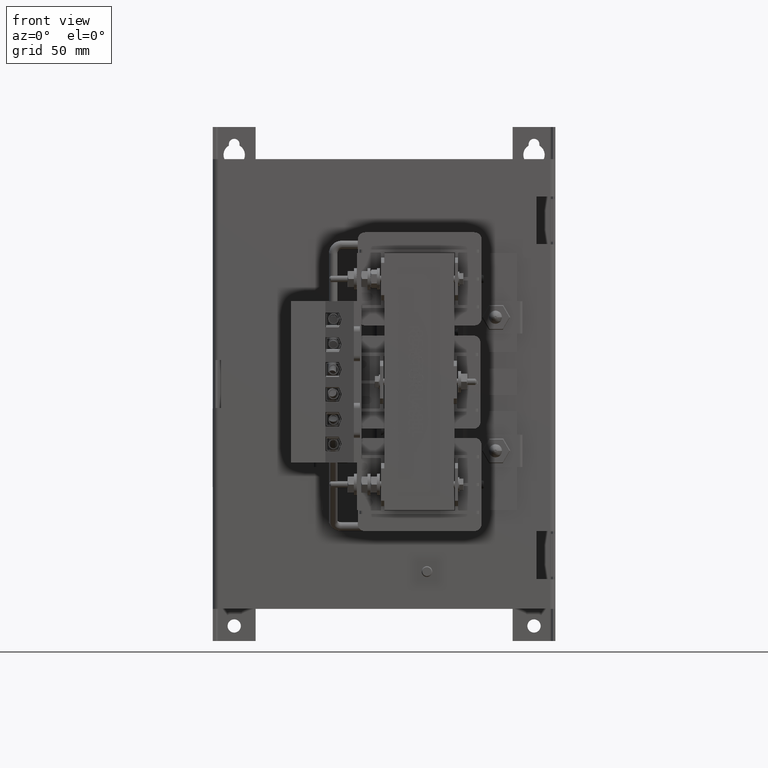
[diagram: clean part render]
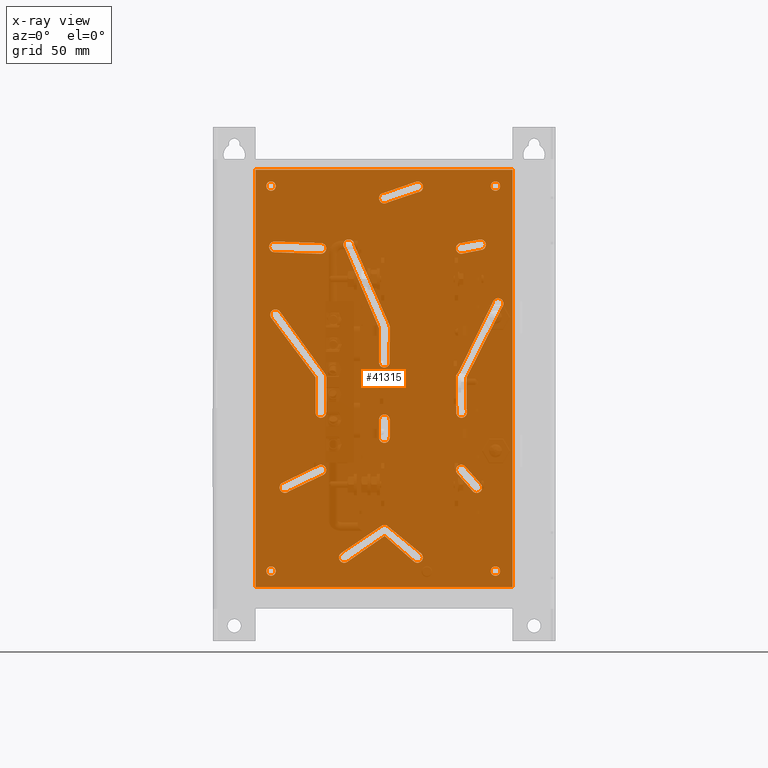
[diagram: x-ray — body ghosted, one internal face saturated and labeled with its STEP entity id]
A machine part, front view, then the same camera in x-ray: the body is ghosted and one INTERNAL B-rep face — a face not visible from any outside direction — is saturated and labeled: STEP entity #41315.
In plain terms, the highlighted planar face has unit normal (0, -1, -0).
Its self-contained STEP definition (entity closure, byte-faithful):
#1560=FACE_BOUND('',#6615,.T.);
#1561=FACE_BOUND('',#6616,.T.);
#1562=FACE_BOUND('',#6617,.T.);
#1563=FACE_BOUND('',#6618,.T.);
#1564=FACE_BOUND('',#6619,.T.);
#1565=FACE_BOUND('',#6620,.T.);
#1566=FACE_BOUND('',#6621,.T.);
#1567=FACE_BOUND('',#6622,.T.);
#1568=FACE_BOUND('',#6623,.T.);
#1569=FACE_BOUND('',#6624,.T.);
#1570=FACE_BOUND('',#6625,.T.);
#1571=FACE_BOUND('',#6626,.T.);
#1572=FACE_BOUND('',#6627,.T.);
#1573=FACE_BOUND('',#6628,.T.);
#2050=PLANE('',#44567);
#4233=FACE_OUTER_BOUND('',#6614,.T.);
#6614=EDGE_LOOP('',(#29718,#29719,#29720,#29721));
#6615=EDGE_LOOP('',(#29722,#29723,#29724,#29725));
#6616=EDGE_LOOP('',(#29726,#29727,#29728,#29729));
#6617=EDGE_LOOP('',(#29730,#29731,#29732,#29733,#29734,#29735,#29736,#29737));
#6618=EDGE_LOOP('',(#29738,#29739,#29740,#29741,#29742,#29743,#29744));
#6619=EDGE_LOOP('',(#29745,#29746,#29747,#29748,#29749,#29750,#29751));
#6620=EDGE_LOOP('',(#29752,#29753,#29754,#29755));
#6621=EDGE_LOOP('',(#29756,#29757,#29758,#29759,#29760,#29761,#29762));
#6622=EDGE_LOOP('',(#29763,#29764,#29765,#29766));
#6623=EDGE_LOOP('',(#29767,#29768,#29769,#29770));
#6624=EDGE_LOOP('',(#29771,#29772,#29773,#29774));
#6625=EDGE_LOOP('',(#29775));
#6626=EDGE_LOOP('',(#29776));
#6627=EDGE_LOOP('',(#29777));
#6628=EDGE_LOOP('',(#29778));
#9417=LINE('',#60218,#13462);
#9422=LINE('',#60232,#13467);
#9426=LINE('',#60241,#13471);
#9432=LINE('',#60253,#13477);
#9433=LINE('',#60266,#13478);
#9437=LINE('',#60275,#13482);
#9442=LINE('',#60289,#13487);
#9446=LINE('',#60301,#13491);
#9449=LINE('',#60308,#13494);
#9454=LINE('',#60322,#13499);
#9460=LINE('',#60334,#13505);
#9461=LINE('',#60338,#13506);
#9471=LINE('',#60387,#13516);
#9473=LINE('',#60405,#13518);
#9474=LINE('',#60407,#13519);
#9475=LINE('',#60409,#13520);
#9476=LINE('',#60410,#13521);
#9477=LINE('',#60413,#13522);
#9478=LINE('',#60416,#13523);
#9479=LINE('',#60420,#13524);
#9480=LINE('',#60424,#13525);
#9481=LINE('',#60426,#13526);
#9482=LINE('',#60430,#13527);
#9483=LINE('',#60434,#13528);
#9484=LINE('',#60438,#13529);
#9485=LINE('',#60442,#13530);
#9486=LINE('',#60447,#13531);
#9487=LINE('',#60450,#13532);
#9488=LINE('',#60455,#13533);
#9489=LINE('',#60458,#13534);
#9490=LINE('',#60461,#13535);
#9491=LINE('',#60465,#13536);
#13462=VECTOR('',#48965,0.393700787401575);
#13467=VECTOR('',#48978,0.393700787401575);
#13471=VECTOR('',#48984,0.393700787401575);
#13477=VECTOR('',#48992,0.393700787401575);
#13478=VECTOR('',#49009,0.393700787401575);
#13482=VECTOR('',#49015,0.393700787401575);
#13487=VECTOR('',#49028,0.393700787401575);
#13491=VECTOR('',#49040,0.393700787401575);
#13494=VECTOR('',#49045,0.393700787401575);
#13499=VECTOR('',#49058,0.393700787401575);
#13505=VECTOR('',#49066,0.393700787401575);
#13506=VECTOR('',#49069,0.393700787401575);
#13516=VECTOR('',#49125,0.393700787401575);
#13518=VECTOR('',#49143,0.393700787401575);
#13519=VECTOR('',#49144,0.393700787401575);
#13520=VECTOR('',#49145,0.393700787401575);
#13521=VECTOR('',#49146,0.393700787401575);
#13522=VECTOR('',#49149,0.393700787401575);
#13523=VECTOR('',#49152,0.393700787401575);
#13524=VECTOR('',#49155,0.393700787401575);
#13525=VECTOR('',#49158,0.393700787401575);
#13526=VECTOR('',#49159,0.393700787401575);
#13527=VECTOR('',#49162,0.393700787401575);
#13528=VECTOR('',#49165,0.393700787401575);
#13529=VECTOR('',#49168,0.393700787401575);
#13530=VECTOR('',#49171,0.393700787401575);
#13531=VECTOR('',#49176,0.393700787401575);
#13532=VECTOR('',#49179,0.393700787401575);
#13533=VECTOR('',#49182,0.393700787401575);
#13534=VECTOR('',#49185,0.393700787401575);
#13535=VECTOR('',#49186,0.393700787401575);
#13536=VECTOR('',#49189,0.393700787401575);
#17244=CIRCLE('',#44508,0.125);
#17247=CIRCLE('',#44516,0.125);
#17250=CIRCLE('',#44523,0.125000000000001);
#17252=CIRCLE('',#44527,0.125);
#17254=CIRCLE('',#44532,0.125);
#17256=CIRCLE('',#44538,0.125);
#17259=CIRCLE('',#44542,0.125);
#17263=CIRCLE('',#44548,0.125);
#17266=CIRCLE('',#44552,0.125);
#17278=CIRCLE('',#44568,0.125000000000001);
#17279=CIRCLE('',#44569,0.125);
#17280=CIRCLE('',#44570,0.125);
#17281=CIRCLE('',#44571,0.125);
#17282=CIRCLE('',#44572,0.125);
#17283=CIRCLE('',#44573,0.110977153248394);
#17284=CIRCLE('',#44574,0.125);
#17285=CIRCLE('',#44575,0.125);
#17286=CIRCLE('',#44576,0.125);
#17287=CIRCLE('',#44577,0.125);
#17288=CIRCLE('',#44578,0.125);
#17289=CIRCLE('',#44579,0.125);
#17290=CIRCLE('',#44580,0.125);
#17291=CIRCLE('',#44581,0.125);
#17292=CIRCLE('',#44582,0.125);
#17293=CIRCLE('',#44583,0.125);
#17294=CIRCLE('',#44584,0.11);
#17295=CIRCLE('',#44585,0.11);
#17296=CIRCLE('',#44586,0.11);
#17297=CIRCLE('',#44587,0.11);
#18733=VERTEX_POINT('',#60216);
#18734=VERTEX_POINT('',#60217);
#18737=VERTEX_POINT('',#60225);
#18739=VERTEX_POINT('',#60231);
#18741=VERTEX_POINT('',#60237);
#18743=VERTEX_POINT('',#60240);
#18746=VERTEX_POINT('',#60247);
#18748=VERTEX_POINT('',#60251);
#18751=VERTEX_POINT('',#60264);
#18752=VERTEX_POINT('',#60265);
#18755=VERTEX_POINT('',#60273);
#18756=VERTEX_POINT('',#60274);
#18759=VERTEX_POINT('',#60285);
#18761=VERTEX_POINT('',#60288);
#18763=VERTEX_POINT('',#60294);
#18765=VERTEX_POINT('',#60300);
#18767=VERTEX_POINT('',#60306);
#18768=VERTEX_POINT('',#60307);
#18771=VERTEX_POINT('',#60315);
#18773=VERTEX_POINT('',#60321);
#18776=VERTEX_POINT('',#60328);
#18778=VERTEX_POINT('',#60332);
#18779=VERTEX_POINT('',#60336);
#18780=VERTEX_POINT('',#60337);
#18785=VERTEX_POINT('',#60357);
#18788=VERTEX_POINT('',#60365);
#18796=VERTEX_POINT('',#60385);
#18803=VERTEX_POINT('',#60403);
#18804=VERTEX_POINT('',#60404);
#18805=VERTEX_POINT('',#60406);
#18806=VERTEX_POINT('',#60408);
#18807=VERTEX_POINT('',#60412);
#18808=VERTEX_POINT('',#60414);
#18809=VERTEX_POINT('',#60417);
#18810=VERTEX_POINT('',#60419);
#18811=VERTEX_POINT('',#60422);
#18812=VERTEX_POINT('',#60423);
#18813=VERTEX_POINT('',#60425);
#18814=VERTEX_POINT('',#60427);
#18815=VERTEX_POINT('',#60429);
#18816=VERTEX_POINT('',#60431);
#18817=VERTEX_POINT('',#60433);
#18818=VERTEX_POINT('',#60436);
#18819=VERTEX_POINT('',#60437);
#18820=VERTEX_POINT('',#60439);
#18821=VERTEX_POINT('',#60441);
#18822=VERTEX_POINT('',#60444);
#18823=VERTEX_POINT('',#60446);
#18824=VERTEX_POINT('',#60448);
#18825=VERTEX_POINT('',#60451);
#18826=VERTEX_POINT('',#60452);
#18827=VERTEX_POINT('',#60454);
#18828=VERTEX_POINT('',#60456);
#18829=VERTEX_POINT('',#60459);
#18830=VERTEX_POINT('',#60460);
#18831=VERTEX_POINT('',#60462);
#18832=VERTEX_POINT('',#60464);
#18833=VERTEX_POINT('',#60468);
#18834=VERTEX_POINT('',#60470);
#18835=VERTEX_POINT('',#60472);
#18836=VERTEX_POINT('',#60474);
#22933=EDGE_CURVE('',#18733,#18734,#9417,.T.);
#22937=EDGE_CURVE('',#18737,#18733,#17244,.T.);
#22940=EDGE_CURVE('',#18739,#18737,#9422,.T.);
#22944=EDGE_CURVE('',#18743,#18741,#9426,.T.);
#22950=EDGE_CURVE('',#18746,#18748,#9432,.T.);
#22952=EDGE_CURVE('',#18748,#18743,#17247,.T.);
#22955=EDGE_CURVE('',#18751,#18752,#9433,.T.);
#22959=EDGE_CURVE('',#18755,#18756,#9437,.T.);
#22963=EDGE_CURVE('',#18752,#18755,#17250,.T.);
#22966=EDGE_CURVE('',#18761,#18759,#9442,.T.);
#22969=EDGE_CURVE('',#18763,#18761,#17252,.T.);
#22972=EDGE_CURVE('',#18765,#18763,#9446,.T.);
#22975=EDGE_CURVE('',#18767,#18768,#9449,.T.);
#22979=EDGE_CURVE('',#18771,#18767,#17254,.T.);
#22982=EDGE_CURVE('',#18773,#18771,#9454,.T.);
#22988=EDGE_CURVE('',#18776,#18778,#9460,.T.);
#22989=EDGE_CURVE('',#18779,#18780,#9461,.T.);
#22993=EDGE_CURVE('',#18778,#18779,#17256,.T.);
#22996=EDGE_CURVE('',#18734,#18739,#17259,.T.);
#23000=EDGE_CURVE('',#18785,#18765,#17263,.T.);
#23005=EDGE_CURVE('',#18759,#18788,#17266,.T.);
#23015=EDGE_CURVE('',#18768,#18796,#9471,.T.);
#23023=EDGE_CURVE('',#18803,#18804,#9473,.T.);
#23024=EDGE_CURVE('',#18805,#18803,#9474,.T.);
#23025=EDGE_CURVE('',#18806,#18805,#9475,.T.);
#23026=EDGE_CURVE('',#18804,#18806,#9476,.T.);
#23027=EDGE_CURVE('',#18741,#18746,#17278,.T.);
#23028=EDGE_CURVE('',#18788,#18807,#9477,.T.);
#23029=EDGE_CURVE('',#18807,#18808,#17279,.T.);
#23030=EDGE_CURVE('',#18808,#18785,#9478,.T.);
#23031=EDGE_CURVE('',#18796,#18809,#17280,.T.);
#23032=EDGE_CURVE('',#18809,#18810,#9479,.T.);
#23033=EDGE_CURVE('',#18810,#18773,#17281,.T.);
#23034=EDGE_CURVE('',#18811,#18812,#9480,.T.);
#23035=EDGE_CURVE('',#18812,#18813,#9481,.T.);
#23036=EDGE_CURVE('',#18813,#18814,#17282,.T.);
#23037=EDGE_CURVE('',#18814,#18815,#9482,.T.);
#23038=EDGE_CURVE('',#18815,#18816,#17283,.T.);
#23039=EDGE_CURVE('',#18816,#18817,#9483,.T.);
#23040=EDGE_CURVE('',#18817,#18811,#17284,.T.);
#23041=EDGE_CURVE('',#18818,#18819,#9484,.T.);
#23042=EDGE_CURVE('',#18819,#18820,#17285,.T.);
#23043=EDGE_CURVE('',#18820,#18821,#9485,.T.);
#23044=EDGE_CURVE('',#18821,#18818,#17286,.T.);
#23045=EDGE_CURVE('',#18780,#18822,#17287,.T.);
#23046=EDGE_CURVE('',#18822,#18823,#9486,.T.);
#23047=EDGE_CURVE('',#18823,#18824,#17288,.T.);
#23048=EDGE_CURVE('',#18824,#18776,#9487,.T.);
#23049=EDGE_CURVE('',#18825,#18826,#17289,.T.);
#23050=EDGE_CURVE('',#18826,#18827,#9488,.T.);
#23051=EDGE_CURVE('',#18827,#18828,#17290,.T.);
#23052=EDGE_CURVE('',#18828,#18825,#9489,.T.);
#23053=EDGE_CURVE('',#18829,#18830,#9490,.T.);
#23054=EDGE_CURVE('',#18830,#18831,#17291,.T.);
#23055=EDGE_CURVE('',#18831,#18832,#9491,.T.);
#23056=EDGE_CURVE('',#18832,#18829,#17292,.T.);
#23057=EDGE_CURVE('',#18756,#18751,#17293,.T.);
#23058=EDGE_CURVE('',#18833,#18833,#17294,.T.);
#23059=EDGE_CURVE('',#18834,#18834,#17295,.T.);
#23060=EDGE_CURVE('',#18835,#18835,#17296,.T.);
#23061=EDGE_CURVE('',#18836,#18836,#17297,.T.);
#29718=ORIENTED_EDGE('',*,*,#23023,.F.);
#29719=ORIENTED_EDGE('',*,*,#23024,.F.);
#29720=ORIENTED_EDGE('',*,*,#23025,.F.);
#29721=ORIENTED_EDGE('',*,*,#23026,.F.);
#29722=ORIENTED_EDGE('',*,*,#22933,.T.);
#29723=ORIENTED_EDGE('',*,*,#22996,.T.);
#29724=ORIENTED_EDGE('',*,*,#22940,.T.);
#29725=ORIENTED_EDGE('',*,*,#22937,.T.);
#29726=ORIENTED_EDGE('',*,*,#22944,.T.);
#29727=ORIENTED_EDGE('',*,*,#23027,.T.);
#29728=ORIENTED_EDGE('',*,*,#22950,.T.);
#29729=ORIENTED_EDGE('',*,*,#22952,.T.);
#29730=ORIENTED_EDGE('',*,*,#22966,.T.);
#29731=ORIENTED_EDGE('',*,*,#23005,.T.);
#29732=ORIENTED_EDGE('',*,*,#23028,.T.);
#29733=ORIENTED_EDGE('',*,*,#23029,.T.);
#29734=ORIENTED_EDGE('',*,*,#23030,.T.);
#29735=ORIENTED_EDGE('',*,*,#23000,.T.);
#29736=ORIENTED_EDGE('',*,*,#22972,.T.);
#29737=ORIENTED_EDGE('',*,*,#22969,.T.);
#29738=ORIENTED_EDGE('',*,*,#22975,.T.);
#29739=ORIENTED_EDGE('',*,*,#23015,.T.);
#29740=ORIENTED_EDGE('',*,*,#23031,.T.);
#29741=ORIENTED_EDGE('',*,*,#23032,.T.);
#29742=ORIENTED_EDGE('',*,*,#23033,.T.);
#29743=ORIENTED_EDGE('',*,*,#22982,.T.);
#29744=ORIENTED_EDGE('',*,*,#22979,.T.);
#29745=ORIENTED_EDGE('',*,*,#23034,.T.);
#29746=ORIENTED_EDGE('',*,*,#23035,.T.);
#29747=ORIENTED_EDGE('',*,*,#23036,.T.);
#29748=ORIENTED_EDGE('',*,*,#23037,.T.);
#29749=ORIENTED_EDGE('',*,*,#23038,.T.);
#29750=ORIENTED_EDGE('',*,*,#23039,.T.);
#29751=ORIENTED_EDGE('',*,*,#23040,.T.);
#29752=ORIENTED_EDGE('',*,*,#23041,.T.);
#29753=ORIENTED_EDGE('',*,*,#23042,.T.);
#29754=ORIENTED_EDGE('',*,*,#23043,.T.);
#29755=ORIENTED_EDGE('',*,*,#23044,.T.);
#29756=ORIENTED_EDGE('',*,*,#22988,.T.);
#29757=ORIENTED_EDGE('',*,*,#22993,.T.);
#29758=ORIENTED_EDGE('',*,*,#22989,.T.);
#29759=ORIENTED_EDGE('',*,*,#23045,.T.);
#29760=ORIENTED_EDGE('',*,*,#23046,.T.);
#29761=ORIENTED_EDGE('',*,*,#23047,.T.);
#29762=ORIENTED_EDGE('',*,*,#23048,.T.);
#29763=ORIENTED_EDGE('',*,*,#23049,.T.);
#29764=ORIENTED_EDGE('',*,*,#23050,.T.);
#29765=ORIENTED_EDGE('',*,*,#23051,.T.);
#29766=ORIENTED_EDGE('',*,*,#23052,.T.);
#29767=ORIENTED_EDGE('',*,*,#23053,.T.);
#29768=ORIENTED_EDGE('',*,*,#23054,.T.);
#29769=ORIENTED_EDGE('',*,*,#23055,.T.);
#29770=ORIENTED_EDGE('',*,*,#23056,.T.);
#29771=ORIENTED_EDGE('',*,*,#22955,.T.);
#29772=ORIENTED_EDGE('',*,*,#22963,.T.);
#29773=ORIENTED_EDGE('',*,*,#22959,.T.);
#29774=ORIENTED_EDGE('',*,*,#23057,.T.);
#29775=ORIENTED_EDGE('',*,*,#23058,.T.);
#29776=ORIENTED_EDGE('',*,*,#23059,.T.);
#29777=ORIENTED_EDGE('',*,*,#23060,.T.);
#29778=ORIENTED_EDGE('',*,*,#23061,.T.);
#41315=ADVANCED_FACE('',(#4233,#1560,#1561,#1562,#1563,#1564,#1565,#1566,
#1567,#1568,#1569,#1570,#1571,#1572,#1573),#2050,.T.);
#44508=AXIS2_PLACEMENT_3D('',#60226,#48971,#48972);
#44516=AXIS2_PLACEMENT_3D('',#60258,#48999,#49000);
#44523=AXIS2_PLACEMENT_3D('',#60282,#49021,#49022);
#44527=AXIS2_PLACEMENT_3D('',#60295,#49033,#49034);
#44532=AXIS2_PLACEMENT_3D('',#60316,#49051,#49052);
#44538=AXIS2_PLACEMENT_3D('',#60345,#49075,#49076);
#44542=AXIS2_PLACEMENT_3D('',#60349,#49083,#49084);
#44548=AXIS2_PLACEMENT_3D('',#60358,#49095,#49096);
#44552=AXIS2_PLACEMENT_3D('',#60367,#49105,#49106);
#44567=AXIS2_PLACEMENT_3D('',#60402,#49141,#49142);
#44568=AXIS2_PLACEMENT_3D('',#60411,#49147,#49148);
#44569=AXIS2_PLACEMENT_3D('',#60415,#49150,#49151);
#44570=AXIS2_PLACEMENT_3D('',#60418,#49153,#49154);
#44571=AXIS2_PLACEMENT_3D('',#60421,#49156,#49157);
#44572=AXIS2_PLACEMENT_3D('',#60428,#49160,#49161);
#44573=AXIS2_PLACEMENT_3D('',#60432,#49163,#49164);
#44574=AXIS2_PLACEMENT_3D('',#60435,#49166,#49167);
#44575=AXIS2_PLACEMENT_3D('',#60440,#49169,#49170);
#44576=AXIS2_PLACEMENT_3D('',#60443,#49172,#49173);
#44577=AXIS2_PLACEMENT_3D('',#60445,#49174,#49175);
#44578=AXIS2_PLACEMENT_3D('',#60449,#49177,#49178);
#44579=AXIS2_PLACEMENT_3D('',#60453,#49180,#49181);
#44580=AXIS2_PLACEMENT_3D('',#60457,#49183,#49184);
#44581=AXIS2_PLACEMENT_3D('',#60463,#49187,#49188);
#44582=AXIS2_PLACEMENT_3D('',#60466,#49190,#49191);
#44583=AXIS2_PLACEMENT_3D('',#60467,#49192,#49193);
#44584=AXIS2_PLACEMENT_3D('',#60469,#49194,#49195);
#44585=AXIS2_PLACEMENT_3D('',#60471,#49196,#49197);
#44586=AXIS2_PLACEMENT_3D('',#60473,#49198,#49199);
#44587=AXIS2_PLACEMENT_3D('',#60475,#49200,#49201);
#48965=DIRECTION('',(-0.189120695263455,0.98195384953829,0.));
#48971=DIRECTION('center_axis',(0.,0.,-1.));
#48972=DIRECTION('ref_axis',(-1.,-3.9163772837171E-14,0.));
#48978=DIRECTION('',(0.189120695263462,-0.981953849538289,0.));
#48984=DIRECTION('',(-0.31958107040843,0.947558937183646,0.));
#48992=DIRECTION('',(0.326793462565013,-0.945095779709533,0.));
#48999=DIRECTION('center_axis',(0.,0.,-1.));
#49000=DIRECTION('ref_axis',(-1.,7.27327209833176E-14,0.));
#49009=DIRECTION('',(0.0334946231416854,0.999438897692398,0.));
#49015=DIRECTION('',(-0.033365828764387,-0.999443205725501,0.));
#49021=DIRECTION('center_axis',(0.,0.,-1.));
#49022=DIRECTION('ref_axis',(0.997773442943062,-0.0666945017040313,0.));
#49028=DIRECTION('',(-0.809813678529459,-0.586687144964491,0.));
#49033=DIRECTION('center_axis',(0.,0.,-1.));
#49034=DIRECTION('ref_axis',(0.586687144964494,-0.809813678529457,0.));
#49040=DIRECTION('',(0.801607077258319,0.597851230398813,0.));
#49045=DIRECTION('',(-0.891686044096794,0.452654392183497,0.));
#49051=DIRECTION('center_axis',(0.,0.,-1.));
#49052=DIRECTION('ref_axis',(0.452654392183499,0.891686044096793,0.));
#49058=DIRECTION('',(0.898166042352089,-0.439656411718953,0.));
#49066=DIRECTION('',(0.919457470021028,0.393189471912118,0.));
#49069=DIRECTION('',(-0.915538818327686,-0.402229626128092,0.));
#49075=DIRECTION('center_axis',(0.,0.,-1.));
#49076=DIRECTION('ref_axis',(0.,-1.,0.));
#49083=DIRECTION('center_axis',(0.,0.,-1.));
#49084=DIRECTION('ref_axis',(-1.,0.,0.));
#49095=DIRECTION('center_axis',(0.,0.,-1.));
#49096=DIRECTION('ref_axis',(-0.000649313761124934,-0.999999789195798,0.));
#49105=DIRECTION('center_axis',(0.,0.,-1.));
#49106=DIRECTION('ref_axis',(-0.000649313761124934,-0.999999789195798,0.));
#49125=DIRECTION('',(-0.999998844598271,-0.00152013227161745,0.));
#49141=DIRECTION('center_axis',(0.,0.,1.));
#49142=DIRECTION('ref_axis',(1.,0.,0.));
#49143=DIRECTION('',(2.33117695459351E-16,-1.,0.));
#49144=DIRECTION('',(1.,2.86914086719201E-16,0.));
#49145=DIRECTION('',(0.,1.,0.));
#49146=DIRECTION('',(-1.,-7.17285216798001E-16,0.));
#49147=DIRECTION('center_axis',(0.,0.,-1.));
#49148=DIRECTION('ref_axis',(-1.,0.,0.));
#49149=DIRECTION('',(-0.999999789195797,0.000649313761124667,0.));
#49150=DIRECTION('center_axis',(0.,0.,-1.));
#49151=DIRECTION('ref_axis',(0.168000000000007,0.985786995247958,0.));
#49152=DIRECTION('',(0.999997534758301,0.002220467815553,0.));
#49153=DIRECTION('center_axis',(0.,0.,-1.));
#49154=DIRECTION('ref_axis',(-0.114062938577571,-0.993473525587395,0.));
#49155=DIRECTION('',(0.999998844598271,0.00152013227161722,0.));
#49156=DIRECTION('center_axis',(0.,0.,-1.));
#49157=DIRECTION('ref_axis',(-0.0015201322716194,0.999998844598271,0.));
#49158=DIRECTION('',(0.656828890289127,0.75403966001899,0.));
#49159=DIRECTION('',(-0.569900208126551,0.821713911758413,0.));
#49160=DIRECTION('center_axis',(0.,0.,-1.));
#49161=DIRECTION('ref_axis',(0.829009169031406,0.559235011119527,0.));
#49162=DIRECTION('',(0.559761974676629,-0.82865344487676,0.));
#49163=DIRECTION('center_axis',(0.,0.,-1.));
#49164=DIRECTION('ref_axis',(0.773988726106779,-0.633199377652573,0.));
#49165=DIRECTION('',(-0.633199377652574,-0.773988726106778,0.));
#49166=DIRECTION('center_axis',(0.,0.,-1.));
#49167=DIRECTION('ref_axis',(-0.810941512931037,0.58512721916274,0.));
#49168=DIRECTION('',(0.438083051435493,-0.89893450264464,0.));
#49169=DIRECTION('center_axis',(0.,0.,-1.));
#49170=DIRECTION('ref_axis',(0.902578742692736,0.430524811409517,0.));
#49171=DIRECTION('',(-0.43052481140952,0.902578742692735,0.));
#49172=DIRECTION('center_axis',(0.,0.,-1.));
#49173=DIRECTION('ref_axis',(-0.898934502644641,-0.438083051435493,0.));
#49174=DIRECTION('center_axis',(0.,0.,-1.));
#49175=DIRECTION('ref_axis',(-0.00152013227155224,-0.999998844598271,0.));
#49176=DIRECTION('',(-0.999998844598271,0.00152013227163772,0.));
#49177=DIRECTION('center_axis',(0.,0.,-1.));
#49178=DIRECTION('ref_axis',(0.139472872705688,0.990225892298936,0.));
#49179=DIRECTION('',(0.999998844598271,0.00152013227161511,0.));
#49180=DIRECTION('center_axis',(0.,0.,-1.));
#49181=DIRECTION('ref_axis',(0.659458974459682,-0.751740554316837,0.));
#49182=DIRECTION('',(-0.751740554316836,-0.659458974459683,0.));
#49183=DIRECTION('center_axis',(0.,0.,-1.));
#49184=DIRECTION('ref_axis',(-0.660501431014047,0.750824786237373,0.));
#49185=DIRECTION('',(0.750824786237374,0.660501431014046,0.));
#49186=DIRECTION('',(0.99999998428598,-0.000177279553222082,0.));
#49187=DIRECTION('center_axis',(0.,0.,-1.));
#49188=DIRECTION('ref_axis',(0.000177279553223857,0.99999998428598,0.));
#49189=DIRECTION('',(-0.99999998428598,0.000177279553218712,0.));
#49190=DIRECTION('center_axis',(0.,0.,-1.));
#49191=DIRECTION('ref_axis',(-0.000177279553223859,-0.99999998428598,0.));
#49192=DIRECTION('center_axis',(0.,0.,-1.));
#49193=DIRECTION('ref_axis',(-1.,0.,0.));
#49194=DIRECTION('center_axis',(0.,0.,-1.));
#49195=DIRECTION('ref_axis',(-1.,0.,0.));
#49196=DIRECTION('center_axis',(0.,0.,-1.));
#49197=DIRECTION('ref_axis',(-1.,0.,0.));
#49198=DIRECTION('center_axis',(0.,0.,-1.));
#49199=DIRECTION('ref_axis',(-1.,0.,0.));
#49200=DIRECTION('center_axis',(0.,0.,-1.));
#49201=DIRECTION('ref_axis',(-1.,0.,0.));
#60216=CARTESIAN_POINT('',(8.41162331100637,4.41461050532242,0.0625));
#60217=CARTESIAN_POINT('',(8.32537331100637,4.86243838267184,0.0625));
#60218=CARTESIAN_POINT('',(8.14011042651278,5.82436167907065,0.0625));
#60225=CARTESIAN_POINT('',(8.65268165166215,4.46103745400774,0.0625));
#60226=CARTESIAN_POINT('Origin',(8.52768165166214,4.46103745400774,0.0625));
#60231=CARTESIAN_POINT('',(8.56643165166214,4.90886533135716,0.0625));
#60232=CARTESIAN_POINT('',(8.38116876716853,5.87078862775598,0.0625));
#60237=CARTESIAN_POINT('',(9.51596466680299,6.62933197915266,0.0625));
#60240=CARTESIAN_POINT('',(9.75268165166215,5.92746533135717,0.0625));
#60241=CARTESIAN_POINT('',(9.29354452825029,7.28880843007602,0.0625));
#60247=CARTESIAN_POINT('',(9.74041713043667,6.70694273495842,0.0625));
#60251=CARTESIAN_POINT('',(9.99581862412584,5.96831451417779,0.0625));
#60253=CARTESIAN_POINT('',(9.50816281098218,7.37862868428211,0.0625));
#60258=CARTESIAN_POINT('Origin',(9.87768165166214,5.92746533135716,0.0625));
#60264=CARTESIAN_POINT('',(8.31650178945059,8.19147428190044,0.0625));
#60265=CARTESIAN_POINT('',(8.35268165166214,9.27103745400774,0.0625));
#60266=CARTESIAN_POINT('',(8.3081778028214,7.94309662480913,0.0625));
#60273=CARTESIAN_POINT('',(8.60268165166231,9.27103745400773,0.0625));
#60274=CARTESIAN_POINT('',(8.56636205237783,8.18311672541218,0.0625));
#60275=CARTESIAN_POINT('',(8.55807676509628,7.93493844278938,0.0625));
#60282=CARTESIAN_POINT('Origin',(8.47768165166223,9.27103745400773,0.0625));
#60285=CARTESIAN_POINT('',(5.51157026994144,8.0901228116983,0.0625));
#60288=CARTESIAN_POINT('',(6.96602561853439,9.14383464513369,0.0625));
#60289=CARTESIAN_POINT('',(5.14825904718868,7.82691408892464,0.0625));
#60294=CARTESIAN_POINT('',(6.81795832161398,9.34526223960716,0.0625));
#60295=CARTESIAN_POINT('Origin',(6.89268972541383,9.24506135494987,0.0625));
#60300=CARTESIAN_POINT('',(5.43293165166214,8.31228745400776,0.0625));
#60301=CARTESIAN_POINT('',(5.73203310824599,8.53536204866369,0.0625));
#60306=CARTESIAN_POINT('',(7.0960998526392,3.93957669849564,0.0625));
#60307=CARTESIAN_POINT('',(5.43293165166214,4.78386533135717,0.0625));
#60308=CARTESIAN_POINT('',(5.03197769733715,4.98740509705171,0.0625));
#60315=CARTESIAN_POINT('',(7.207638703127,4.16330820930176,0.0625));
#60316=CARTESIAN_POINT('Origin',(7.15268165166213,4.05103745400774,0.0625));
#60321=CARTESIAN_POINT('',(5.53383805273943,4.98264133166642,0.0625));
#60322=CARTESIAN_POINT('',(5.97657791256681,4.76591813248277,0.0625));
#60328=CARTESIAN_POINT('',(6.58123513596212,6.82999853628519,0.0625));
#60332=CARTESIAN_POINT('',(8.43730140239134,7.62371193676962,0.0625));
#60334=CARTESIAN_POINT('',(6.98958904518375,7.00462375077872,0.0625));
#60336=CARTESIAN_POINT('',(8.52768165166214,7.41236142697525,0.0625));
#60337=CARTESIAN_POINT('',(6.65721035492815,6.59059510171676,0.0625));
#60338=CARTESIAN_POINT('',(6.15360712964734,6.36934381999437,0.0625));
#60345=CARTESIAN_POINT('Origin',(8.52768165166214,7.53736142697525,0.0625));
#60349=CARTESIAN_POINT('Origin',(8.44143165166214,4.90886533135716,0.0625));
#60357=CARTESIAN_POINT('',(5.43265409318519,8.31228714585254,0.0625));
#60358=CARTESIAN_POINT('Origin',(5.43293165166214,8.18728745400775,0.0625));
#60365=CARTESIAN_POINT('',(5.432850487442,8.06228748035827,0.0625));
#60367=CARTESIAN_POINT('Origin',(5.43293165166214,8.18728745400775,0.0625));
#60385=CARTESIAN_POINT('',(4.6435655962405,4.78266524473041,0.0625));
#60387=CARTESIAN_POINT('',(5.41936647156567,4.78384456603993,0.0625));
#60402=CARTESIAN_POINT('Origin',(5.40268165166214,6.71103745400774,0.0625));
#60403=CARTESIAN_POINT('',(10.2776816516621,9.71103745400774,0.0625));
#60404=CARTESIAN_POINT('',(10.2776816516621,3.71103745400774,0.0625));
#60405=CARTESIAN_POINT('',(10.2776816516621,3.71103745400774,0.0625));
#60406=CARTESIAN_POINT('',(0.527681651662144,9.71103745400773,0.0625));
#60407=CARTESIAN_POINT('',(10.2776816516621,9.71103745400774,0.0625));
#60408=CARTESIAN_POINT('',(0.527681651662144,3.71103745400773,0.0625));
#60409=CARTESIAN_POINT('',(0.527681651662144,9.71103745400773,0.0625));
#60410=CARTESIAN_POINT('',(0.527681651662144,3.71103745400773,0.0625));
#60411=CARTESIAN_POINT('Origin',(9.61543165166214,6.70503745400771,0.0625));
#60412=CARTESIAN_POINT('',(4.62313460241605,8.06281324013585,0.0625));
#60413=CARTESIAN_POINT('',(5.41820476843773,8.06229699002717,0.0625));
#60414=CARTESIAN_POINT('',(4.63268165166214,8.31051082841375,0.0625));
#60415=CARTESIAN_POINT('Origin',(4.61168165166214,8.18728745400776,0.0625));
#60416=CARTESIAN_POINT('',(5.01590396823127,8.31136176333166,0.0625));
#60417=CARTESIAN_POINT('',(4.62593951898434,5.02771470785282,0.0625));
#60418=CARTESIAN_POINT('Origin',(4.61168165166214,4.9035305171544,0.0625));
#60419=CARTESIAN_POINT('',(5.39801070224636,5.02888835953052,0.0625));
#60420=CARTESIAN_POINT('',(5.01558912301128,5.02830702747489,0.0625));
#60421=CARTESIAN_POINT('Origin',(5.43293165166214,4.90886533135717,0.0625));
#60422=CARTESIAN_POINT('',(1.12431396254577,6.00541758981439,0.0625));
#60423=CARTESIAN_POINT('',(1.72810046886345,6.69856458544584,0.0625));
#60424=CARTESIAN_POINT('',(2.22194757314368,7.26550113181015,0.0625));
#60425=CARTESIAN_POINT('',(1.12390825650996,7.56972262186598,0.0625));
#60426=CARTESIAN_POINT('',(2.32190669455072,5.84238164397965,0.0625));
#60427=CARTESIAN_POINT('',(1.32930779779107,7.71220231113294,0.0625));
#60428=CARTESIAN_POINT('Origin',(1.22568165166214,7.642297934743,0.0625));
#60429=CARTESIAN_POINT('',(1.96764325200404,6.76723123940888,0.0625));
#60430=CARTESIAN_POINT('',(2.19966447947497,6.42375455087643,0.0625));
#60431=CARTESIAN_POINT('',(1.96157671713183,6.63483978459203,0.0625));
#60432=CARTESIAN_POINT('Origin',(1.87568165166215,6.70511044896257,0.0625));
#60433=CARTESIAN_POINT('',(1.32757738285076,5.85987323470071,0.0625));
#60434=CARTESIAN_POINT('',(2.67008934800652,7.50088736447792,0.0625));
#60435=CARTESIAN_POINT('Origin',(1.22568165166215,5.93227668741905,0.0625));
#60436=CARTESIAN_POINT('',(2.97004846449272,9.08130470779715,0.0625));
#60437=CARTESIAN_POINT('',(3.37904846449272,8.24204783543719,0.0625));
#60438=CARTESIAN_POINT('',(3.67019507195085,7.64462291814253,0.0625));
#60439=CARTESIAN_POINT('',(3.15385930882555,8.13347185258157,0.0625));
#60440=CARTESIAN_POINT('Origin',(3.26668165166214,8.18728745400776,0.0625));
#60441=CARTESIAN_POINT('',(2.77068165166214,8.93678910367844,0.0625));
#60442=CARTESIAN_POINT('',(3.63863732130216,7.11715335620107,0.0625));
#60443=CARTESIAN_POINT('Origin',(2.85768165166214,9.02654432636771,0.0625));
#60444=CARTESIAN_POINT('',(6.6067416351282,6.58003759843294,0.0625));
#60445=CARTESIAN_POINT('Origin',(6.60693165166214,6.70503745400772,0.0625));
#60446=CARTESIAN_POINT('',(5.80311576075035,6.58125921747037,0.0625));
#60447=CARTESIAN_POINT('',(6.00461346612837,6.58095291395186,0.0625));
#60448=CARTESIAN_POINT('',(5.80311576075035,6.8288156905451,0.0625));
#60449=CARTESIAN_POINT('Origin',(5.78568165166214,6.70503745400773,0.0625));
#60450=CARTESIAN_POINT('',(5.60280964972255,6.82851119840971,0.0625));
#60451=CARTESIAN_POINT('',(3.19509369269561,5.01133563989095,0.0625));
#60452=CARTESIAN_POINT('',(3.3491140234696,4.81489776206758,0.0625));
#60453=CARTESIAN_POINT('Origin',(3.26668165166214,4.90886533135718,0.0625));
#60454=CARTESIAN_POINT('',(2.92441748683473,4.44233579118876,0.0625));
#60455=CARTESIAN_POINT('',(4.39936188280434,5.7362201149301,0.0625));
#60456=CARTESIAN_POINT('',(2.77511897278539,4.64188339407401,0.0625));
#60457=CARTESIAN_POINT('Origin',(2.85768165166215,4.54803029579434,0.0625));
#60458=CARTESIAN_POINT('',(4.2283426094411,5.92028590447152,0.0625));
#60459=CARTESIAN_POINT('',(4.0257038116063,6.83011102305922,0.0625));
#60460=CARTESIAN_POINT('',(4.44070381160629,6.83003745204348,0.0625));
#60461=CARTESIAN_POINT('',(4.71420326465076,6.82998896618188,0.0625));
#60462=CARTESIAN_POINT('',(4.44065949171799,6.58003745597199,0.0625));
#60463=CARTESIAN_POINT('Origin',(4.44068165166214,6.70503745400774,0.0625));
#60464=CARTESIAN_POINT('',(4.02565949171799,6.58011102698773,0.0625));
#60465=CARTESIAN_POINT('',(4.92165894476245,6.57995218460251,0.0625));
#60466=CARTESIAN_POINT('Origin',(4.02568165166214,6.70511102502348,0.0625));
#60467=CARTESIAN_POINT('Origin',(8.44143165166214,8.18728745400774,0.0625));
#60468=CARTESIAN_POINT('',(1.01768165166214,9.35096533135716,0.0625));
#60469=CARTESIAN_POINT('Origin',(0.907681651662145,9.35096533135716,0.0625));
#60470=CARTESIAN_POINT('',(10.0076816516621,4.11096533135718,0.0625));
#60471=CARTESIAN_POINT('Origin',(9.89768165166214,4.11096533135718,0.0625));
#60472=CARTESIAN_POINT('',(10.0076816516621,9.35096533135718,0.0625));
#60473=CARTESIAN_POINT('Origin',(9.89768165166214,9.35096533135718,0.0625));
#60474=CARTESIAN_POINT('',(1.01768165166214,4.11096533135716,0.0625));
#60475=CARTESIAN_POINT('Origin',(0.907681651662145,4.11096533135716,0.0625));